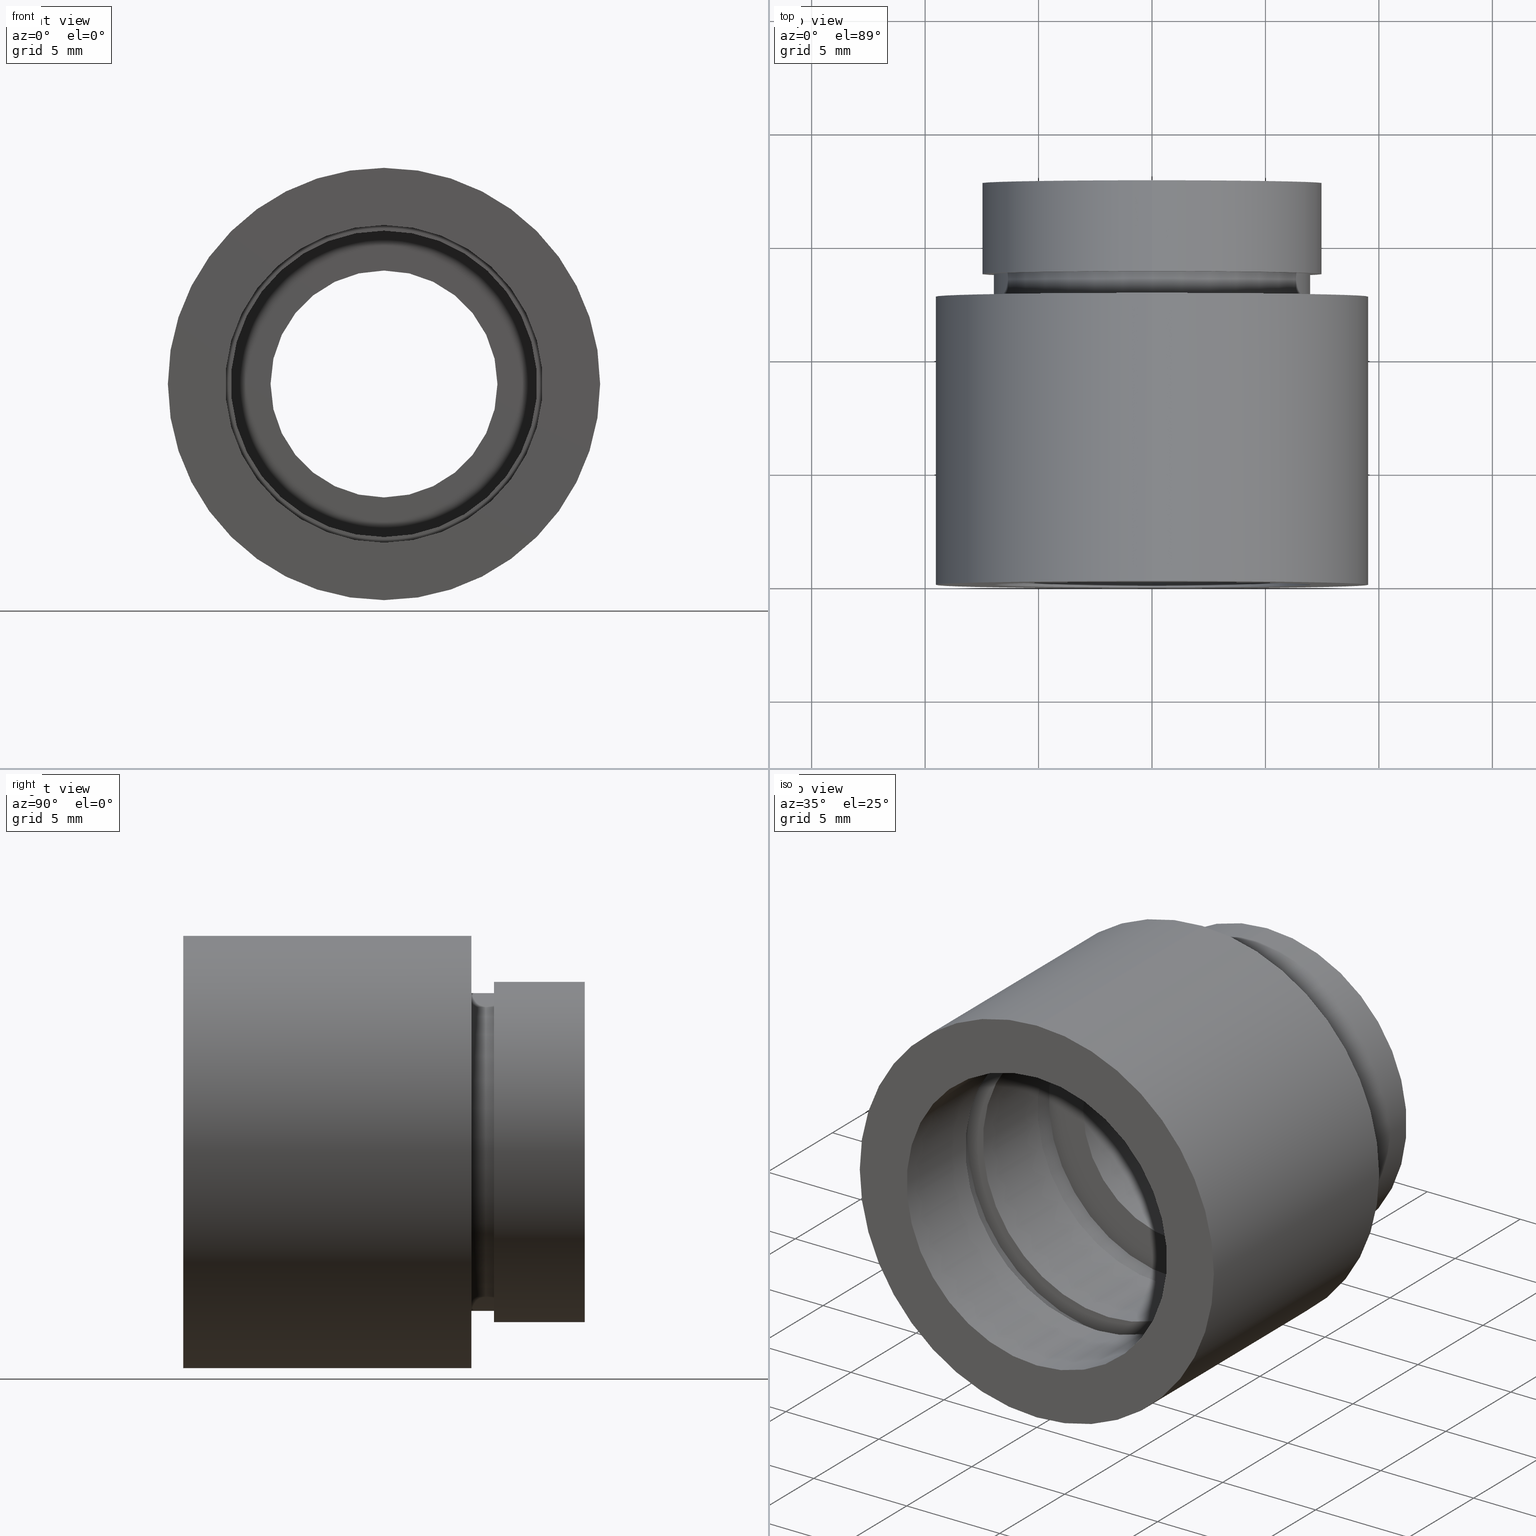
[diagram: canonical four-view strip — front | top / right | iso, engineering-drawing reading convention]
A machine part, canonical four-view strip (front | top / right | iso — engineering-drawing reading convention). The complete STEP part file that produces these views, byte-faithful:
ISO-10303-21;
HEADER;
FILE_DESCRIPTION (( 'STEP AP203' ),
    '1' );
FILE_NAME ('503081.STEP',
    '2021-05-27T08:49:48',
    ( '' ),
    ( '' ),
    'SwSTEP 2.0',
    'SolidWorks 2020',
    '' );
FILE_SCHEMA (( 'CONFIG_CONTROL_DESIGN' ));
ENDSEC;

DATA;
#1 = CARTESIAN_POINT ( 'NONE',  ( 0.000000000000000000, 161.3761669434274495, 0.000000000000000000 ) ) ;
#2 = PERSON_AND_ORGANIZATION_ROLE ( 'design_owner' ) ;
#3 = EDGE_LOOP ( 'NONE', ( #549, #90, #642, #698 ) ) ;
#4 = ADVANCED_FACE ( 'NONE', ( #473, #231 ), #415, .F. ) ;
#5 = DIRECTION ( 'NONE',  ( 0.000000000000000000, -1.000000000000000000, 0.000000000000000000 ) ) ;
#6 = PERSON_AND_ORGANIZATION ( #295, #449 ) ;
#7 = VERTEX_POINT ( 'NONE', #77 ) ;
#8 = SECURITY_CLASSIFICATION ( '', '', #224 ) ;
#9 = CARTESIAN_POINT ( 'NONE',  ( 8.388830574159390583E-16, 161.3761669434274495, -6.850000000000017408 ) ) ;
#10 = PERSON_AND_ORGANIZATION ( #295, #449 ) ;
#11 = FACE_OUTER_BOUND ( 'NONE', #300, .T. ) ;
#12 = ADVANCED_FACE ( 'NONE', ( #291 ), #234, .F. ) ;
#13 = DIRECTION ( 'NONE',  ( 0.000000000000000000, 0.000000000000000000, 1.000000000000000000 ) ) ;
#14 = CC_DESIGN_PERSON_AND_ORGANIZATION_ASSIGNMENT ( #63, #673, ( #8 ) ) ;
#15 = CIRCLE ( 'NONE', #250, 9.525000000000019895 ) ;
#16 = CARTESIAN_POINT ( 'NONE',  ( 0.000000000000000000, 161.3761669434274495, 0.000000000000000000 ) ) ;
#17 = CIRCLE ( 'NONE', #107, 6.850000000000017408 ) ;
#18 = CARTESIAN_POINT ( 'NONE',  ( 8.572527594031496856E-16, 4.499999999999976019, -7.000000000000020428 ) ) ;
#19 = CARTESIAN_POINT ( 'NONE',  ( 0.000000000000000000, 161.3761669434274495, 6.750000000000018652 ) ) ;
#20 = EDGE_LOOP ( 'NONE', ( #310, #72 ) ) ;
#21 = CIRCLE ( 'NONE', #111, 9.525000000000019895 ) ;
#22 = CARTESIAN_POINT ( 'NONE',  ( 0.000000000000000000, -2.775557561562891351E-14, 0.000000000000000000 ) ) ;
#23 = ORIENTED_EDGE ( 'NONE', *, *, #517, .F. ) ;
#24 = EDGE_CURVE ( 'NONE', #264, #7, #226, .T. ) ;
#25 = DIRECTION ( 'NONE',  ( -0.000000000000000000, 1.000000000000000000, -0.000000000000000000 ) ) ;
#26 = AXIS2_PLACEMENT_3D ( 'NONE', #45, #258, #487 ) ;
#27 = EDGE_LOOP ( 'NONE', ( #221, #409 ) ) ;
#28 = PLANE ( 'NONE',  #50 ) ;
#29 = VERTEX_POINT ( 'NONE', #18 ) ;
#30 = VECTOR ( 'NONE', #697, 1000.000000000000000 ) ;
#31 = AXIS2_PLACEMENT_3D ( 'NONE', #162, #571, #109 ) ;
#32 = ORIENTED_EDGE ( 'NONE', *, *, #320, .T. ) ;
#33 = CARTESIAN_POINT ( 'NONE',  ( 0.000000000000000000, 5.499999999999976907, 0.000000000000000000 ) ) ;
#34 = EDGE_CURVE ( 'NONE', #481, #37, #407, .T. ) ;
#35 = DIRECTION ( 'NONE',  ( 0.000000000000000000, 0.000000000000000000, 1.000000000000000000 ) ) ;
#36 = DIRECTION ( 'NONE',  ( -0.000000000000000000, 1.000000000000000000, -0.000000000000000000 ) ) ;
#37 = VERTEX_POINT ( 'NONE', #178 ) ;
#38 = EDGE_LOOP ( 'NONE', ( #317, #242 ) ) ;
#39 = DIRECTION ( 'NONE',  ( 0.000000000000000000, 0.000000000000000000, 1.000000000000000000 ) ) ;
#40 = CARTESIAN_POINT ( 'NONE',  ( 0.000000000000000000, 161.3761669434274495, 0.000000000000000000 ) ) ;
#41 = CARTESIAN_POINT ( 'NONE',  ( 8.572527594031494883E-16, 13.69999999999999041, -7.000000000000018652 ) ) ;
#42 = EDGE_LOOP ( 'NONE', ( #149, #436 ) ) ;
#43 = DIRECTION ( 'NONE',  ( 0.000000000000000000, 0.000000000000000000, 1.000000000000000000 ) ) ;
#44 = VECTOR ( 'NONE', #660, 1000.000000000000000 ) ;
#45 = CARTESIAN_POINT ( 'NONE',  ( 0.000000000000000000, 161.3761669434274495, 0.000000000000000000 ) ) ;
#46 = CARTESIAN_POINT ( 'NONE',  ( 0.000000000000000000, -2.775557561562891351E-14, 0.000000000000000000 ) ) ;
#47 = AXIS2_PLACEMENT_3D ( 'NONE', #440, #723, #97 ) ;
#48 = VERTEX_POINT ( 'NONE', #349 ) ;
#49 = DIRECTION ( 'NONE',  ( 0.000000000000000000, 0.000000000000000000, 1.000000000000000000 ) ) ;
#50 = AXIS2_PLACEMENT_3D ( 'NONE', #364, #244, #591 ) ;
#51 = ORIENTED_EDGE ( 'NONE', *, *, #80, .F. ) ;
#52 = CIRCLE ( 'NONE', #683, 6.850000000000017408 ) ;
#53 = EDGE_CURVE ( 'NONE', #60, #29, #83, .T. ) ;
#54 = DIRECTION ( 'NONE',  ( -0.000000000000000000, 1.000000000000000000, -0.000000000000000000 ) ) ;
#55 = DATE_TIME_ROLE ( 'creation_date' ) ;
#56 = APPLICATION_CONTEXT ( 'configuration controlled 3d designs of mechanical parts and assemblies' ) ;
#57 = CARTESIAN_POINT ( 'NONE',  ( 0.000000000000000000, 161.3761669434274495, 0.000000000000000000 ) ) ;
#58 = DIRECTION ( 'NONE',  ( -0.000000000000000000, 1.000000000000000000, -0.000000000000000000 ) ) ;
#59 = DATE_AND_TIME ( #443, #186 ) ;
#60 = VERTEX_POINT ( 'NONE', #344 ) ;
#61 = DIRECTION ( 'NONE',  ( -0.000000000000000000, 1.000000000000000000, -0.000000000000000000 ) ) ;
#62 = CARTESIAN_POINT ( 'NONE',  ( 0.000000000000000000, -2.775557561562891351E-14, 7.000000000000020428 ) ) ;
#63 = PERSON_AND_ORGANIZATION ( #295, #449 ) ;
#64 = CARTESIAN_POINT ( 'NONE',  ( 8.388830574159390583E-16, 9.699999999999958433, -6.850000000000017408 ) ) ;
#65 = CC_DESIGN_DATE_AND_TIME_ASSIGNMENT ( #59, #55, ( #181 ) ) ;
#66 = AXIS2_PLACEMENT_3D ( 'NONE', #593, #25, #35 ) ;
#67 = CARTESIAN_POINT ( 'NONE',  ( 0.000000000000000000, 12.69999999999998863, 0.000000000000000000 ) ) ;
#68 = CARTESIAN_POINT ( 'NONE',  ( 0.000000000000000000, 17.69999999999996732, 7.500000000000015099 ) ) ;
#69 = COORDINATED_UNIVERSAL_TIME_OFFSET ( 8, 0, .AHEAD. ) ;
#70 = CIRCLE ( 'NONE', #629, 7.000000000000020428 ) ;
#71 = FACE_OUTER_BOUND ( 'NONE', #187, .T. ) ;
#72 = ORIENTED_EDGE ( 'NONE', *, *, #211, .T. ) ;
#73 = LINE ( 'NONE', #574, #306 ) ;
#74 = AXIS2_PLACEMENT_3D ( 'NONE', #171, #169, #333 ) ;
#75 = EDGE_CURVE ( 'NONE', #209, #144, #368, .T. ) ;
#76 = ORIENTED_EDGE ( 'NONE', *, *, #175, .T. ) ;
#77 = CARTESIAN_POINT ( 'NONE',  ( 0.000000000000000000, 12.69999999999998863, 7.000000000000018652 ) ) ;
#78 = CARTESIAN_POINT ( 'NONE',  ( 0.000000000000000000, 161.3761669434274495, 7.000000000000020428 ) ) ;
#79 = ORIENTED_EDGE ( 'NONE', *, *, #175, .F. ) ;
#80 = EDGE_CURVE ( 'NONE', #401, #469, #679, .T. ) ;
#81 = CARTESIAN_POINT ( 'NONE',  ( 0.000000000000000000, 161.3761669434274495, 0.000000000000000000 ) ) ;
#82 = ORIENTED_EDGE ( 'NONE', *, *, #517, .T. ) ;
#83 = CIRCLE ( 'NONE', #490, 7.000000000000020428 ) ;
#84 = DIRECTION ( 'NONE',  ( -0.000000000000000000, 1.000000000000000000, -0.000000000000000000 ) ) ;
#85 = AXIS2_PLACEMENT_3D ( 'NONE', #694, #408, #577 ) ;
#86 = EDGE_LOOP ( 'NONE', ( #708, #136, #290, #422 ) ) ;
#87 = EDGE_CURVE ( 'NONE', #182, #29, #362, .T. ) ;
#88 = DIRECTION ( 'NONE',  ( -0.000000000000000000, 1.000000000000000000, -0.000000000000000000 ) ) ;
#89 = ORIENTED_EDGE ( 'NONE', *, *, #24, .T. ) ;
#90 = ORIENTED_EDGE ( 'NONE', *, *, #125, .F. ) ;
#91 = CARTESIAN_POINT ( 'NONE',  ( 0.000000000000000000, 9.699999999999958433, 0.000000000000000000 ) ) ;
#92 = AXIS2_PLACEMENT_3D ( 'NONE', #195, #640, #357 ) ;
#93 = CARTESIAN_POINT ( 'NONE',  ( 8.388830574159390583E-16, 10.69999999999996021, -6.850000000000017408 ) ) ;
#94 = APPLICATION_CONTEXT ( 'configuration controlled 3d designs of mechanical parts and assemblies' ) ;
#95 = EDGE_LOOP ( 'NONE', ( #135, #544 ) ) ;
#96 = CARTESIAN_POINT ( 'NONE',  ( 9.307315673519907153E-16, 161.3761669434274495, -7.600000000000019185 ) ) ;
#97 = DIRECTION ( 'NONE',  ( 0.000000000000000000, 0.000000000000000000, 1.000000000000000000 ) ) ;
#98 = DIRECTION ( 'NONE',  ( -0.000000000000000000, 1.000000000000000000, -0.000000000000000000 ) ) ;
#99 = ORIENTED_EDGE ( 'NONE', *, *, #240, .T. ) ;
#100 = AXIS2_PLACEMENT_3D ( 'NONE', #67, #288, #315 ) ;
#101 = EDGE_CURVE ( 'NONE', #528, #209, #104, .T. ) ;
#102 = DIRECTION ( 'NONE',  ( 0.000000000000000000, 0.000000000000000000, 1.000000000000000000 ) ) ;
#103 = ORIENTED_EDGE ( 'NONE', *, *, #468, .T. ) ;
#104 = CIRCLE ( 'NONE', #644, 6.850000000000017408 ) ;
#105 = CARTESIAN_POINT ( 'NONE',  ( 9.307315673519907153E-16, 5.499999999999976907, -7.600000000000019185 ) ) ;
#106 = DIRECTION ( 'NONE',  ( 0.000000000000000000, 0.000000000000000000, 1.000000000000000000 ) ) ;
#107 = AXIS2_PLACEMENT_3D ( 'NONE', #123, #126, #245 ) ;
#108 = ORIENTED_EDGE ( 'NONE', *, *, #636, .F. ) ;
#109 = DIRECTION ( 'NONE',  ( 0.000000000000000000, 0.000000000000000000, 1.000000000000000000 ) ) ;
#110 = SHAPE_DEFINITION_REPRESENTATION ( #523, #424 ) ;
#111 = AXIS2_PLACEMENT_3D ( 'NONE', #321, #619, #442 ) ;
#112 = CYLINDRICAL_SURFACE ( 'NONE', #74, 5.000000000000016875 ) ;
#113 = CARTESIAN_POINT ( 'NONE',  ( 0.000000000000000000, 9.699999999999958433, 0.000000000000000000 ) ) ;
#114 = EDGE_CURVE ( 'NONE', #438, #692, #515, .T. ) ;
#115 = AXIS2_PLACEMENT_3D ( 'NONE', #645, #485, #374 ) ;
#116 = CARTESIAN_POINT ( 'NONE',  ( 8.572527594031494883E-16, 161.3761669434274495, -7.000000000000018652 ) ) ;
#117 = FACE_OUTER_BOUND ( 'NONE', #3, .T. ) ;
#118 = PERSON_AND_ORGANIZATION ( #295, #449 ) ;
#119 = CARTESIAN_POINT ( 'NONE',  ( 8.266365894244657013E-16, 161.3761669434274495, -6.750000000000018652 ) ) ;
#120 = PERSON_AND_ORGANIZATION_ROLE ( 'creator' ) ;
#121 = CIRCLE ( 'NONE', #189, 7.000000000000020428 ) ;
#122 = DIRECTION ( 'NONE',  ( 0.000000000000000000, 0.000000000000000000, 1.000000000000000000 ) ) ;
#123 = CARTESIAN_POINT ( 'NONE',  ( 0.000000000000000000, 10.69999999999996021, 0.000000000000000000 ) ) ;
#124 = CYLINDRICAL_SURFACE ( 'NONE', #606, 6.850000000000017408 ) ;
#125 = EDGE_CURVE ( 'NONE', #209, #528, #620, .T. ) ;
#126 = DIRECTION ( 'NONE',  ( -0.000000000000000000, 1.000000000000000000, -0.000000000000000000 ) ) ;
#127 = ORIENTED_EDGE ( 'NONE', *, *, #628, .F. ) ;
#128 = ORIENTED_EDGE ( 'NONE', *, *, #657, .F. ) ;
#129 = CYLINDRICAL_SURFACE ( 'NONE', #435, 6.750000000000018652 ) ;
#130 = PRODUCT_DEFINITION_FORMATION_WITH_SPECIFIED_SOURCE ( '�κ�', '', #347, .NOT_KNOWN. ) ;
#131 = ORIENTED_EDGE ( 'NONE', *, *, #628, .T. ) ;
#132 = CARTESIAN_POINT ( 'NONE',  ( 0.000000000000000000, 161.3761669434274495, 5.000000000000016875 ) ) ;
#133 = FACE_BOUND ( 'NONE', #20, .T. ) ;
#134 = CARTESIAN_POINT ( 'NONE',  ( 8.266365894244657013E-16, 5.499999999999976907, -6.750000000000018652 ) ) ;
#135 = ORIENTED_EDGE ( 'NONE', *, *, #600, .T. ) ;
#136 = ORIENTED_EDGE ( 'NONE', *, *, #327, .F. ) ;
#137 = CARTESIAN_POINT ( 'NONE',  ( 0.000000000000000000, 161.3761669434274495, 0.000000000000000000 ) ) ;
#138 = AXIS2_PLACEMENT_3D ( 'NONE', #137, #647, #693 ) ;
#139 = CC_DESIGN_PERSON_AND_ORGANIZATION_ASSIGNMENT ( #386, #450, ( #130 ) ) ;
#140 = MANIFOLD_SOLID_BREP ( '��ת1', #353 ) ;
#141 = CARTESIAN_POINT ( 'NONE',  ( 0.000000000000000000, 12.69999999999998863, 9.525000000000019895 ) ) ;
#142 = AXIS2_PLACEMENT_3D ( 'NONE', #661, #36, #200 ) ;
#143 = AXIS2_PLACEMENT_3D ( 'NONE', #57, #54, #13 ) ;
#144 = VERTEX_POINT ( 'NONE', #603 ) ;
#145 = CARTESIAN_POINT ( 'NONE',  ( 0.000000000000000000, 5.499999999999976907, 0.000000000000000000 ) ) ;
#146 = DIRECTION ( 'NONE',  ( 0.000000000000000000, 0.000000000000000000, 1.000000000000000000 ) ) ;
#147 = DIRECTION ( 'NONE',  ( -0.000000000000000000, 1.000000000000000000, -0.000000000000000000 ) ) ;
#148 = ORIENTED_EDGE ( 'NONE', *, *, #704, .T. ) ;
#149 = ORIENTED_EDGE ( 'NONE', *, *, #327, .T. ) ;
#150 = AXIS2_PLACEMENT_3D ( 'NONE', #665, #706, #158 ) ;
#151 = DIRECTION ( 'NONE',  ( -0.000000000000000000, 1.000000000000000000, -0.000000000000000000 ) ) ;
#152 = ORIENTED_EDGE ( 'NONE', *, *, #80, .T. ) ;
#153 = CARTESIAN_POINT ( 'NONE',  ( 8.572527594031496856E-16, -2.775557561562891351E-14, -7.000000000000020428 ) ) ;
#154 = AXIS2_PLACEMENT_3D ( 'NONE', #491, #720, #102 ) ;
#155 = FACE_BOUND ( 'NONE', #27, .T. ) ;
#156 = ORIENTED_EDGE ( 'NONE', *, *, #726, .T. ) ;
#157 = DIRECTION ( 'NONE',  ( 0.000000000000000000, 0.000000000000000000, 1.000000000000000000 ) ) ;
#158 = DIRECTION ( 'NONE',  ( 0.000000000000000000, 0.000000000000000000, 1.000000000000000000 ) ) ;
#159 = EDGE_LOOP ( 'NONE', ( #360, #261 ) ) ;
#160 = ORIENTED_EDGE ( 'NONE', *, *, #510, .F. ) ;
#161 = AXIS2_PLACEMENT_3D ( 'NONE', #687, #235, #174 ) ;
#162 = CARTESIAN_POINT ( 'NONE',  ( 0.000000000000000000, 17.69999999999996732, 0.000000000000000000 ) ) ;
#163 = EDGE_CURVE ( 'NONE', #48, #432, #296, .T. ) ;
#164 = FACE_OUTER_BOUND ( 'NONE', #540, .T. ) ;
#165 = CARTESIAN_POINT ( 'NONE',  ( 0.000000000000000000, 0.000000000000000000, 0.000000000000000000 ) ) ;
#166 = EDGE_LOOP ( 'NONE', ( #127, #191, #76, #656 ) ) ;
#167 = CARTESIAN_POINT ( 'NONE',  ( 6.750000000000018652, 9.699999999999972644, 0.000000000000000000 ) ) ;
#168 = EDGE_CURVE ( 'NONE', #177, #293, #15, .T. ) ;
#169 = DIRECTION ( 'NONE',  ( -0.000000000000000000, 1.000000000000000000, -0.000000000000000000 ) ) ;
#170 = DIRECTION ( 'NONE',  ( 0.000000000000000000, 0.000000000000000000, 1.000000000000000000 ) ) ;
#171 = CARTESIAN_POINT ( 'NONE',  ( 0.000000000000000000, 161.3761669434274495, 0.000000000000000000 ) ) ;
#172 = APPROVAL_ROLE ( '' ) ;
#173 = CIRCLE ( 'NONE', #115, 7.600000000000019185 ) ;
#174 = DIRECTION ( 'NONE',  ( 0.000000000000000000, 0.000000000000000000, 1.000000000000000000 ) ) ;
#175 = EDGE_CURVE ( 'NONE', #586, #48, #252, .T. ) ;
#176 = CARTESIAN_POINT ( 'NONE',  ( 6.750000000000018652, 5.499999999999984013, 0.000000000000000000 ) ) ;
#177 = VERTEX_POINT ( 'NONE', #198 ) ;
#178 = CARTESIAN_POINT ( 'NONE',  ( 0.000000000000000000, 17.69999999999996732, 5.000000000000016875 ) ) ;
#179 = CIRCLE ( 'NONE', #512, 5.000000000000016875 ) ;
#180 = DIRECTION ( 'NONE',  ( -0.000000000000000000, 1.000000000000000000, -0.000000000000000000 ) ) ;
#181 = PRODUCT_DEFINITION ( 'δ֪', '', #130, #662 ) ;
#182 = VERTEX_POINT ( 'NONE', #153 ) ;
#183 = FACE_BOUND ( 'NONE', #42, .T. ) ;
#184 = ORIENTED_EDGE ( 'NONE', *, *, #53, .T. ) ;
#185 = DIRECTION ( 'NONE',  ( -0.000000000000000000, 1.000000000000000000, -0.000000000000000000 ) ) ;
#186 = LOCAL_TIME ( 16, 49, 48.00000000000000000, #680 ) ;
#187 = EDGE_LOOP ( 'NONE', ( #536, #554, #194, #255 ) ) ;
#188 = APPROVAL ( #391, 'δָ��' ) ;
#189 = AXIS2_PLACEMENT_3D ( 'NONE', #22, #279, #462 ) ;
#190 = CYLINDRICAL_SURFACE ( 'NONE', #142, 7.600000000000019185 ) ;
#191 = ORIENTED_EDGE ( 'NONE', *, *, #600, .F. ) ;
#192 = AXIS2_PLACEMENT_3D ( 'NONE', #643, #527, #294 ) ;
#193 = AXIS2_PLACEMENT_3D ( 'NONE', #280, #613, #223 ) ;
#194 = ORIENTED_EDGE ( 'NONE', *, *, #309, .T. ) ;
#195 = CARTESIAN_POINT ( 'NONE',  ( 7.000000000000018652, 13.69999999999998330, 0.000000000000000000 ) ) ;
#196 = VERTEX_POINT ( 'NONE', #428 ) ;
#197 = ORIENTED_EDGE ( 'NONE', *, *, #530, .F. ) ;
#198 = CARTESIAN_POINT ( 'NONE',  ( 0.000000000000000000, -2.775557561562891351E-14, 9.525000000000019895 ) ) ;
#199 = DIRECTION ( 'NONE',  ( 0.000000000000000000, 0.000000000000000000, 1.000000000000000000 ) ) ;
#200 = DIRECTION ( 'NONE',  ( 0.000000000000000000, 0.000000000000000000, 1.000000000000000000 ) ) ;
#201 = ADVANCED_FACE ( 'NONE', ( #207, #659 ), #373, .F. ) ;
#202 = ORIENTED_EDGE ( 'NONE', *, *, #478, .T. ) ;
#203 = DIRECTION ( 'NONE',  ( -0.000000000000000000, 1.000000000000000000, -0.000000000000000000 ) ) ;
#204 = VECTOR ( 'NONE', #437, 1000.000000000000000 ) ;
#205 = DIRECTION ( 'NONE',  ( -0.000000000000000000, 1.000000000000000000, -0.000000000000000000 ) ) ;
#206 = ORIENTED_EDGE ( 'NONE', *, *, #283, .F. ) ;
#207 = FACE_OUTER_BOUND ( 'NONE', #348, .T. ) ;
#208 = CIRCLE ( 'NONE', #682, 5.000000000000016875 ) ;
#209 = VERTEX_POINT ( 'NONE', #256 ) ;
#210 = PLANE ( 'NONE',  #538 ) ;
#211 = EDGE_CURVE ( 'NONE', #612, #557, #271, .T. ) ;
#212 = VECTOR ( 'NONE', #467, 1000.000000000000000 ) ;
#213 = FACE_OUTER_BOUND ( 'NONE', #246, .T. ) ;
#214 = EDGE_LOOP ( 'NONE', ( #669, #488 ) ) ;
#215 = VECTOR ( 'NONE', #482, 1000.000000000000000 ) ;
#216 = LINE ( 'NONE', #617, #461 ) ;
#217 = DATE_AND_TIME ( #277, #689 ) ;
#218 = EDGE_LOOP ( 'NONE', ( #465, #103, #521, #241 ) ) ;
#219 = ADVANCED_FACE ( 'NONE', ( #265, #433 ), #375, .F. ) ;
#220 = DIRECTION ( 'NONE',  ( 0.000000000000000000, 0.000000000000000000, 1.000000000000000000 ) ) ;
#221 = ORIENTED_EDGE ( 'NONE', *, *, #667, .F. ) ;
#222 = APPROVAL_PERSON_ORGANIZATION ( #118, #522, #514 ) ;
#223 = DIRECTION ( 'NONE',  ( 0.000000000000000000, 0.000000000000000000, 1.000000000000000000 ) ) ;
#224 = SECURITY_CLASSIFICATION_LEVEL ( 'unclassified' ) ;
#225 = CARTESIAN_POINT ( 'NONE',  ( 0.000000000000000000, 161.3761669434274495, 0.000000000000000000 ) ) ;
#226 = CIRCLE ( 'NONE', #589, 7.000000000000018652 ) ;
#227 = CARTESIAN_POINT ( 'NONE',  ( 0.000000000000000000, 161.3761669434274495, 0.000000000000000000 ) ) ;
#228 = APPROVAL_STATUS ( 'not_yet_approved' ) ;
#229 = VECTOR ( 'NONE', #392, 1000.000000000000000 ) ;
#230 = DIRECTION ( 'NONE',  ( -0.000000000000000000, 1.000000000000000000, -0.000000000000000000 ) ) ;
#231 = FACE_OUTER_BOUND ( 'NONE', #579, .T. ) ;
#232 = LINE ( 'NONE', #627, #212 ) ;
#233 = ORIENTED_EDGE ( 'NONE', *, *, #510, .T. ) ;
#234 = CYLINDRICAL_SURFACE ( 'NONE', #138, 7.000000000000020428 ) ;
#235 = DIRECTION ( 'NONE',  ( -0.000000000000000000, 1.000000000000000000, -0.000000000000000000 ) ) ;
#236 = EDGE_LOOP ( 'NONE', ( #202, #361 ) ) ;
#237 = CIRCLE ( 'NONE', #459, 7.500000000000015099 ) ;
#238 =( NAMED_UNIT ( * ) PLANE_ANGLE_UNIT ( ) SI_UNIT ( $, .RADIAN. ) );
#239 = CARTESIAN_POINT ( 'NONE',  ( 0.000000000000000000, 13.69999999999999041, 7.500000000000015987 ) ) ;
#240 = EDGE_CURVE ( 'NONE', #293, #177, #21, .T. ) ;
#241 = ORIENTED_EDGE ( 'NONE', *, *, #350, .F. ) ;
#242 = ORIENTED_EDGE ( 'NONE', *, *, #240, .F. ) ;
#243 = PLANE ( 'NONE',  #92 ) ;
#244 = DIRECTION ( 'NONE',  ( 0.000000000000000000, -1.000000000000000000, 0.000000000000000000 ) ) ;
#245 = DIRECTION ( 'NONE',  ( 0.000000000000000000, 0.000000000000000000, 1.000000000000000000 ) ) ;
#246 = EDGE_LOOP ( 'NONE', ( #160, #23, #371, #274 ) ) ;
#247 = DIRECTION ( 'NONE',  ( 0.000000000000000000, 0.000000000000000000, 1.000000000000000000 ) ) ;
#248 = EDGE_LOOP ( 'NONE', ( #668, #89, #148, #476 ) ) ;
#249 = ORIENTED_EDGE ( 'NONE', *, *, #667, .T. ) ;
#250 = AXIS2_PLACEMENT_3D ( 'NONE', #46, #546, #43 ) ;
#251 = DIRECTION ( 'NONE',  ( -0.000000000000000000, 1.000000000000000000, 0.000000000000000000 ) ) ;
#252 = LINE ( 'NONE', #556, #215 ) ;
#253 = CC_DESIGN_PERSON_AND_ORGANIZATION_ASSIGNMENT ( #397, #120, ( #181 ) ) ;
#254 = DIRECTION ( 'NONE',  ( 0.000000000000000000, 0.000000000000000000, 1.000000000000000000 ) ) ;
#255 = ORIENTED_EDGE ( 'NONE', *, *, #75, .F. ) ;
#256 = CARTESIAN_POINT ( 'NONE',  ( 0.000000000000000000, 9.699999999999958433, 6.850000000000017408 ) ) ;
#257 = AXIS2_PLACEMENT_3D ( 'NONE', #470, #539, #199 ) ;
#258 = DIRECTION ( 'NONE',  ( -0.000000000000000000, 1.000000000000000000, -0.000000000000000000 ) ) ;
#259 = ORIENTED_EDGE ( 'NONE', *, *, #283, .T. ) ;
#260 = DIRECTION ( 'NONE',  ( 0.000000000000000000, 0.000000000000000000, 1.000000000000000000 ) ) ;
#261 = ORIENTED_EDGE ( 'NONE', *, *, #726, .F. ) ;
#262 = EDGE_CURVE ( 'NONE', #37, #714, #524, .T. ) ;
#263 = FACE_BOUND ( 'NONE', #607, .T. ) ;
#264 = VERTEX_POINT ( 'NONE', #502 ) ;
#265 = FACE_OUTER_BOUND ( 'NONE', #38, .T. ) ;
#266 = CIRCLE ( 'NONE', #385, 6.750000000000018652 ) ;
#267 = DIRECTION ( 'NONE',  ( -0.000000000000000000, 1.000000000000000000, -0.000000000000000000 ) ) ;
#268 = APPLICATION_PROTOCOL_DEFINITION ( 'international standard', 'config_control_design', 1994, #94 ) ;
#269 = FACE_OUTER_BOUND ( 'NONE', #166, .T. ) ;
#270 = APPROVAL_DATE_TIME ( #685, #522 ) ;
#271 = CIRCLE ( 'NONE', #372, 7.000000000000018652 ) ;
#272 = DIRECTION ( 'NONE',  ( -0.000000000000000000, 1.000000000000000000, -0.000000000000000000 ) ) ;
#273 = APPLICATION_PROTOCOL_DEFINITION ( 'international standard', 'config_control_design', 1994, #56 ) ;
#274 = ORIENTED_EDGE ( 'NONE', *, *, #262, .T. ) ;
#275 = CARTESIAN_POINT ( 'NONE',  ( 0.000000000000000000, 161.3761669434274495, 0.000000000000000000 ) ) ;
#276 = DIRECTION ( 'NONE',  ( -0.000000000000000000, 1.000000000000000000, -0.000000000000000000 ) ) ;
#277 = CALENDAR_DATE ( 2021, 27, 5 ) ;
#278 = CC_DESIGN_APPROVAL ( #686, ( #8 ) ) ;
#279 = DIRECTION ( 'NONE',  ( -0.000000000000000000, 1.000000000000000000, -0.000000000000000000 ) ) ;
#280 = CARTESIAN_POINT ( 'NONE',  ( 0.000000000000000000, 161.3761669434274495, 0.000000000000000000 ) ) ;
#281 = APPROVAL_DATE_TIME ( #572, #686 ) ;
#282 = DIRECTION ( 'NONE',  ( 0.000000000000000000, 0.000000000000000000, 1.000000000000000000 ) ) ;
#283 = EDGE_CURVE ( 'NONE', #177, #633, #565, .T. ) ;
#284 = ADVANCED_FACE ( 'NONE', ( #676, #164 ), #384, .F. ) ;
#285 = DIRECTION ( 'NONE',  ( 0.000000000000000000, 0.000000000000000000, 1.000000000000000000 ) ) ;
#286 = AXIS2_PLACEMENT_3D ( 'NONE', #145, #325, #504 ) ;
#287 = FACE_OUTER_BOUND ( 'NONE', #86, .T. ) ;
#288 = DIRECTION ( 'NONE',  ( -0.000000000000000000, 1.000000000000000000, -0.000000000000000000 ) ) ;
#289 = ADVANCED_FACE ( 'NONE', ( #609 ), #448, .T. ) ;
#290 = ORIENTED_EDGE ( 'NONE', *, *, #445, .T. ) ;
#291 = FACE_OUTER_BOUND ( 'NONE', #318, .T. ) ;
#292 = DIRECTION ( 'NONE',  ( 0.000000000000000000, 0.000000000000000000, 1.000000000000000000 ) ) ;
#293 = VERTEX_POINT ( 'NONE', #446 ) ;
#294 = DIRECTION ( 'NONE',  ( 0.000000000000000000, -0.000000000000000000, -1.000000000000000000 ) ) ;
#295 = PERSON ( 'δָ��', 'δָ��', 'δָ��', ('δָ��'), ('δָ��'), ('δָ��') ) ;
#296 = CIRCLE ( 'NONE', #717, 7.600000000000019185 ) ;
#297 = ORIENTED_EDGE ( 'NONE', *, *, #309, .F. ) ;
#298 = AXIS2_PLACEMENT_3D ( 'NONE', #308, #302, #254 ) ;
#299 = FACE_OUTER_BOUND ( 'NONE', #380, .T. ) ;
#300 = EDGE_LOOP ( 'NONE', ( #108, #99, #259, #495 ) ) ;
#301 = FACE_OUTER_BOUND ( 'NONE', #218, .T. ) ;
#302 = DIRECTION ( 'NONE',  ( -0.000000000000000000, 1.000000000000000000, -0.000000000000000000 ) ) ;
#303 = CIRCLE ( 'NONE', #508, 9.525000000000019895 ) ;
#304 = VERTEX_POINT ( 'NONE', #678 ) ;
#305 = DIRECTION ( 'NONE',  ( -0.000000000000000000, 1.000000000000000000, -0.000000000000000000 ) ) ;
#306 = VECTOR ( 'NONE', #185, 1000.000000000000000 ) ;
#307 = FACE_OUTER_BOUND ( 'NONE', #592, .T. ) ;
#308 = CARTESIAN_POINT ( 'NONE',  ( 0.000000000000000000, 4.499999999999976019, 0.000000000000000000 ) ) ;
#309 = EDGE_CURVE ( 'NONE', #596, #144, #52, .T. ) ;
#310 = ORIENTED_EDGE ( 'NONE', *, *, #444, .T. ) ;
#311 = CARTESIAN_POINT ( 'NONE',  ( 0.000000000000000000, 161.3761669434274495, 6.850000000000017408 ) ) ;
#312 = EDGE_CURVE ( 'NONE', #432, #48, #580, .T. ) ;
#313 = DIRECTION ( 'NONE',  ( 0.000000000000000000, 0.000000000000000000, 1.000000000000000000 ) ) ;
#314 = CARTESIAN_POINT ( 'NONE',  ( 0.000000000000000000, 9.699999999999958433, 0.000000000000000000 ) ) ;
#315 = DIRECTION ( 'NONE',  ( 0.000000000000000000, 0.000000000000000000, 1.000000000000000000 ) ) ;
#316 = FACE_OUTER_BOUND ( 'NONE', #718, .T. ) ;
#317 = ORIENTED_EDGE ( 'NONE', *, *, #168, .F. ) ;
#318 = EDGE_LOOP ( 'NONE', ( #632, #367, #563, #184 ) ) ;
#319 = AXIS2_PLACEMENT_3D ( 'NONE', #165, #170, #621 ) ;
#320 = EDGE_CURVE ( 'NONE', #354, #196, #610, .T. ) ;
#321 = CARTESIAN_POINT ( 'NONE',  ( 0.000000000000000000, -2.775557561562891351E-14, 0.000000000000000000 ) ) ;
#322 = VECTOR ( 'NONE', #463, 1000.000000000000000 ) ;
#323 = DIRECTION ( 'NONE',  ( -0.000000000000000000, 1.000000000000000000, -0.000000000000000000 ) ) ;
#324 = DIRECTION ( 'NONE',  ( -0.000000000000000000, 1.000000000000000000, -0.000000000000000000 ) ) ;
#325 = DIRECTION ( 'NONE',  ( -0.000000000000000000, 1.000000000000000000, -0.000000000000000000 ) ) ;
#326 = DIRECTION ( 'NONE',  ( -0.000000000000000000, 1.000000000000000000, -0.000000000000000000 ) ) ;
#327 = EDGE_CURVE ( 'NONE', #692, #438, #266, .T. ) ;
#328 = CC_DESIGN_PERSON_AND_ORGANIZATION_ASSIGNMENT ( #499, #394, ( #130 ) ) ;
#329 = ORIENTED_EDGE ( 'NONE', *, *, #573, .T. ) ;
#330 = DIRECTION ( 'NONE',  ( -0.000000000000000000, 1.000000000000000000, -0.000000000000000000 ) ) ;
#331 = VECTOR ( 'NONE', #594, 1000.000000000000000 ) ;
#332 = CALENDAR_DATE ( 2021, 27, 5 ) ;
#333 = DIRECTION ( 'NONE',  ( 0.000000000000000000, 0.000000000000000000, 1.000000000000000000 ) ) ;
#334 = APPROVAL_ROLE ( '' ) ;
#335 = APPROVAL_PERSON_ORGANIZATION ( #6, #686, #172 ) ;
#336 = DIRECTION ( 'NONE',  ( 0.000000000000000000, 0.000000000000000000, 1.000000000000000000 ) ) ;
#337 = ADVANCED_FACE ( 'NONE', ( #564 ), #390, .T. ) ;
#338 = VECTOR ( 'NONE', #516, 1000.000000000000000 ) ;
#339 = CARTESIAN_POINT ( 'NONE',  ( 1.166476076187856388E-15, 12.69999999999998863, -9.525000000000019895 ) ) ;
#340 = EDGE_LOOP ( 'NONE', ( #82, #551 ) ) ;
#341 = FACE_OUTER_BOUND ( 'NONE', #472, .T. ) ;
#342 = ADVANCED_FACE ( 'NONE', ( #269 ), #453, .F. ) ;
#343 = ORIENTED_EDGE ( 'NONE', *, *, #588, .F. ) ;
#344 = CARTESIAN_POINT ( 'NONE',  ( 0.000000000000000000, 4.499999999999976019, 7.000000000000020428 ) ) ;
#345 = CARTESIAN_POINT ( 'NONE',  ( 0.000000000000000000, 10.69999999999996021, 5.000000000000016875 ) ) ;
#346 = CIRCLE ( 'NONE', #66, 5.000000000000016875 ) ;
#347 = PRODUCT ( '503081', '503081', '', ( #618 ) ) ;
#348 = EDGE_LOOP ( 'NONE', ( #598, #297 ) ) ;
#349 = CARTESIAN_POINT ( 'NONE',  ( 0.000000000000000000, 5.499999999999976907, 7.600000000000019185 ) ) ;
#350 = EDGE_CURVE ( 'NONE', #469, #354, #216, .T. ) ;
#351 =( NAMED_UNIT ( * ) SI_UNIT ( $, .STERADIAN. ) SOLID_ANGLE_UNIT ( ) );
#352 = DIRECTION ( 'NONE',  ( 0.000000000000000000, 0.000000000000000000, 1.000000000000000000 ) ) ;
#353 = CLOSED_SHELL ( 'NONE', ( #498, #684, #616, #578, #638, #425, #719, #483, #201, #365, #4, #289, #690, #337, #566, #532, #219, #12, #430, #342, #452, #562, #284, #387 ) ) ;
#354 = VERTEX_POINT ( 'NONE', #68 ) ;
#355 = CARTESIAN_POINT ( 'NONE',  ( 0.000000000000000000, 12.69999999999998863, 0.000000000000000000 ) ) ;
#356 = CIRCLE ( 'NONE', #529, 7.500000000000015987 ) ;
#357 = DIRECTION ( 'NONE',  ( 0.000000000000000000, 0.000000000000000000, 1.000000000000000000 ) ) ;
#358 = CARTESIAN_POINT ( 'NONE',  ( 1.166476076187856388E-15, 161.3761669434274495, -9.525000000000019895 ) ) ;
#359 = CIRCLE ( 'NONE', #558, 6.750000000000018652 ) ;
#360 = ORIENTED_EDGE ( 'NONE', *, *, #262, .F. ) ;
#361 = ORIENTED_EDGE ( 'NONE', *, *, #530, .T. ) ;
#362 = LINE ( 'NONE', #542, #417 ) ;
#363 = FACE_OUTER_BOUND ( 'NONE', #703, .T. ) ;
#364 = CARTESIAN_POINT ( 'NONE',  ( 7.000000000000018652, 12.69999999999998153, 0.000000000000000000 ) ) ;
#365 = ADVANCED_FACE ( 'NONE', ( #213 ), #112, .F. ) ;
#366 = CC_DESIGN_SECURITY_CLASSIFICATION ( #8, ( #130 ) ) ;
#367 = ORIENTED_EDGE ( 'NONE', *, *, #478, .F. ) ;
#368 = LINE ( 'NONE', #311, #204 ) ;
#369 =( LENGTH_UNIT ( ) NAMED_UNIT ( * ) SI_UNIT ( .MILLI., .METRE. ) );
#370 = LINE ( 'NONE', #96, #664 ) ;
#371 = ORIENTED_EDGE ( 'NONE', *, *, #34, .T. ) ;
#372 = AXIS2_PLACEMENT_3D ( 'NONE', #715, #203, #260 ) ;
#373 = PLANE ( 'NONE',  #403 ) ;
#374 = DIRECTION ( 'NONE',  ( 0.000000000000000000, 0.000000000000000000, 1.000000000000000000 ) ) ;
#375 = PLANE ( 'NONE',  #154 ) ;
#376 = EDGE_CURVE ( 'NONE', #583, #582, #359, .T. ) ;
#377 = DIRECTION ( 'NONE',  ( 0.000000000000000000, 0.000000000000000000, 1.000000000000000000 ) ) ;
#378 = VERTEX_POINT ( 'NONE', #62 ) ;
#379 = AXIS2_PLACEMENT_3D ( 'NONE', #225, #681, #282 ) ;
#380 = EDGE_LOOP ( 'NONE', ( #343, #131, #688, #79 ) ) ;
#381 = DIRECTION ( 'NONE',  ( 0.000000000000000000, -1.000000000000000000, 0.000000000000000000 ) ) ;
#382 = DIRECTION ( 'NONE',  ( 0.000000000000000000, -0.000000000000000000, -1.000000000000000000 ) ) ;
#383 = EDGE_CURVE ( 'NONE', #528, #596, #507, .T. ) ;
#384 = PLANE ( 'NONE',  #649 ) ;
#385 = AXIS2_PLACEMENT_3D ( 'NONE', #388, #323, #560 ) ;
#386 = PERSON_AND_ORGANIZATION ( #295, #449 ) ;
#387 = ADVANCED_FACE ( 'NONE', ( #117 ), #513, .F. ) ;
#388 = CARTESIAN_POINT ( 'NONE',  ( 0.000000000000000000, 5.499999999999976907, 0.000000000000000000 ) ) ;
#389 = LINE ( 'NONE', #116, #671 ) ;
#390 = CYLINDRICAL_SURFACE ( 'NONE', #143, 7.000000000000018652 ) ;
#391 = APPROVAL_STATUS ( 'not_yet_approved' ) ;
#392 = DIRECTION ( 'NONE',  ( -0.000000000000000000, 1.000000000000000000, -0.000000000000000000 ) ) ;
#393 = AXIS2_PLACEMENT_3D ( 'NONE', #713, #416, #655 ) ;
#394 = PERSON_AND_ORGANIZATION_ROLE ( 'creator' ) ;
#395 = EDGE_CURVE ( 'NONE', #144, #596, #17, .T. ) ;
#396 = PLANE ( 'NONE',  #400 ) ;
#397 = PERSON_AND_ORGANIZATION ( #295, #449 ) ;
#398 = LOCAL_TIME ( 16, 49, 48.00000000000000000, #614 ) ;
#399 = DIRECTION ( 'NONE',  ( -0.000000000000000000, 1.000000000000000000, 0.000000000000000000 ) ) ;
#400 = AXIS2_PLACEMENT_3D ( 'NONE', #176, #399, #336 ) ;
#401 = VERTEX_POINT ( 'NONE', #611 ) ;
#402 = CARTESIAN_POINT ( 'NONE',  ( 0.000000000000000000, 4.499999999999976019, 0.000000000000000000 ) ) ;
#403 = AXIS2_PLACEMENT_3D ( 'NONE', #537, #251, #49 ) ;
#404 = EDGE_CURVE ( 'NONE', #264, #612, #389, .T. ) ;
#405 = DIRECTION ( 'NONE',  ( 0.000000000000000000, 0.000000000000000000, 1.000000000000000000 ) ) ;
#406 = ORIENTED_EDGE ( 'NONE', *, *, #573, .F. ) ;
#407 = LINE ( 'NONE', #132, #322 ) ;
#408 = DIRECTION ( 'NONE',  ( -0.000000000000000000, 1.000000000000000000, -0.000000000000000000 ) ) ;
#409 = ORIENTED_EDGE ( 'NONE', *, *, #24, .F. ) ;
#410 = CARTESIAN_POINT ( 'NONE',  ( 6.123233995736786004E-16, 17.69999999999996732, -5.000000000000016875 ) ) ;
#411 = CARTESIAN_POINT ( 'NONE',  ( 0.000000000000000000, 10.69999999999996021, 0.000000000000000000 ) ) ;
#412 = CIRCLE ( 'NONE', #100, 7.000000000000018652 ) ;
#413 = EDGE_LOOP ( 'NONE', ( #653, #152, #489, #496 ) ) ;
#414 = EDGE_LOOP ( 'NONE', ( #707, #722 ) ) ;
#415 = PLANE ( 'NONE',  #192 ) ;
#416 = DIRECTION ( 'NONE',  ( -0.000000000000000000, 1.000000000000000000, -0.000000000000000000 ) ) ;
#417 = VECTOR ( 'NONE', #712, 1000.000000000000000 ) ;
#418 = ORIENTED_EDGE ( 'NONE', *, *, #506, .T. ) ;
#419 = ORIENTED_EDGE ( 'NONE', *, *, #615, .F. ) ;
#420 = CARTESIAN_POINT ( 'NONE',  ( 0.000000000000000000, 9.699999999999958433, 6.750000000000018652 ) ) ;
#421 = AXIS2_PLACEMENT_3D ( 'NONE', #227, #458, #672 ) ;
#422 = ORIENTED_EDGE ( 'NONE', *, *, #657, .T. ) ;
#423 = ORIENTED_EDGE ( 'NONE', *, *, #168, .T. ) ;
#424 = ADVANCED_BREP_SHAPE_REPRESENTATION ( '503081', ( #140, #319 ), #675 ) ;
#425 = ADVANCED_FACE ( 'NONE', ( #439 ), #567, .T. ) ;
#426 = FACE_OUTER_BOUND ( 'NONE', #605, .T. ) ;
#427 = ORIENTED_EDGE ( 'NONE', *, *, #445, .F. ) ;
#428 = CARTESIAN_POINT ( 'NONE',  ( 9.184850993605167666E-16, 17.69999999999996732, -7.500000000000015099 ) ) ;
#429 = LINE ( 'NONE', #358, #331 ) ;
#430 = ADVANCED_FACE ( 'NONE', ( #263, #494 ), #210, .F. ) ;
#431 = VECTOR ( 'NONE', #276, 1000.000000000000000 ) ;
#432 = VERTEX_POINT ( 'NONE', #105 ) ;
#433 = FACE_BOUND ( 'NONE', #236, .T. ) ;
#434 = DIRECTION ( 'NONE',  ( 0.000000000000000000, 0.000000000000000000, 1.000000000000000000 ) ) ;
#435 = AXIS2_PLACEMENT_3D ( 'NONE', #519, #88, #313 ) ;
#436 = ORIENTED_EDGE ( 'NONE', *, *, #114, .T. ) ;
#437 = DIRECTION ( 'NONE',  ( -0.000000000000000000, 1.000000000000000000, -0.000000000000000000 ) ) ;
#438 = VERTEX_POINT ( 'NONE', #134 ) ;
#439 = FACE_OUTER_BOUND ( 'NONE', #520, .T. ) ;
#440 = CARTESIAN_POINT ( 'NONE',  ( 0.000000000000000000, 13.69999999999999041, 0.000000000000000000 ) ) ;
#441 = ORIENTED_EDGE ( 'NONE', *, *, #704, .F. ) ;
#442 = DIRECTION ( 'NONE',  ( 0.000000000000000000, 0.000000000000000000, 1.000000000000000000 ) ) ;
#443 = CALENDAR_DATE ( 2021, 27, 5 ) ;
#444 = EDGE_CURVE ( 'NONE', #557, #612, #575, .T. ) ;
#445 = EDGE_CURVE ( 'NONE', #692, #582, #585, .T. ) ;
#446 = CARTESIAN_POINT ( 'NONE',  ( 1.166476076187856388E-15, -2.775557561562891351E-14, -9.525000000000019895 ) ) ;
#447 = ORIENTED_EDGE ( 'NONE', *, *, #376, .F. ) ;
#448 = CYLINDRICAL_SURFACE ( 'NONE', #193, 7.500000000000015099 ) ;
#449 = ORGANIZATION ( 'δָ��', 'δָ��', '' ) ;
#450 = PERSON_AND_ORGANIZATION_ROLE ( 'design_supplier' ) ;
#451 = VERTEX_POINT ( 'NONE', #464 ) ;
#452 = ADVANCED_FACE ( 'NONE', ( #631, #183 ), #396, .F. ) ;
#453 = CYLINDRICAL_SURFACE ( 'NONE', #480, 7.600000000000019185 ) ;
#454 = CC_DESIGN_PERSON_AND_ORGANIZATION_ASSIGNMENT ( #503, #2, ( #347 ) ) ;
#455 = APPROVAL_STATUS ( 'not_yet_approved' ) ;
#456 = AXIS2_PLACEMENT_3D ( 'NONE', #314, #305, #157 ) ;
#457 = LINE ( 'NONE', #78, #30 ) ;
#458 = DIRECTION ( 'NONE',  ( -0.000000000000000000, 1.000000000000000000, -0.000000000000000000 ) ) ;
#459 = AXIS2_PLACEMENT_3D ( 'NONE', #651, #151, #543 ) ;
#460 = DATE_AND_TIME ( #677, #550 ) ;
#461 = VECTOR ( 'NONE', #267, 1000.000000000000000 ) ;
#462 = DIRECTION ( 'NONE',  ( 0.000000000000000000, 0.000000000000000000, 1.000000000000000000 ) ) ;
#463 = DIRECTION ( 'NONE',  ( -0.000000000000000000, 1.000000000000000000, -0.000000000000000000 ) ) ;
#464 = CARTESIAN_POINT ( 'NONE',  ( 6.123233995736786004E-16, 10.69999999999996021, -5.000000000000016875 ) ) ;
#465 = ORIENTED_EDGE ( 'NONE', *, *, #615, .T. ) ;
#466 = ORIENTED_EDGE ( 'NONE', *, *, #34, .F. ) ;
#467 = DIRECTION ( 'NONE',  ( -0.000000000000000000, 1.000000000000000000, -0.000000000000000000 ) ) ;
#468 = EDGE_CURVE ( 'NONE', #401, #196, #232, .T. ) ;
#469 = VERTEX_POINT ( 'NONE', #239 ) ;
#470 = CARTESIAN_POINT ( 'NONE',  ( 0.000000000000000000, 161.3761669434274495, 0.000000000000000000 ) ) ;
#471 = DIRECTION ( 'NONE',  ( -0.000000000000000000, 1.000000000000000000, -0.000000000000000000 ) ) ;
#472 = EDGE_LOOP ( 'NONE', ( #646, #233, #156, #466 ) ) ;
#473 = FACE_BOUND ( 'NONE', #159, .T. ) ;
#474 = CYLINDRICAL_SURFACE ( 'NONE', #584, 6.750000000000018652 ) ;
#475 = CARTESIAN_POINT ( 'NONE',  ( 8.266365894244657013E-16, 9.699999999999958433, -6.750000000000018652 ) ) ;
#476 = ORIENTED_EDGE ( 'NONE', *, *, #211, .F. ) ;
#477 = VECTOR ( 'NONE', #525, 1000.000000000000000 ) ;
#478 = EDGE_CURVE ( 'NONE', #378, #182, #70, .T. ) ;
#479 = CYLINDRICAL_SURFACE ( 'NONE', #257, 7.500000000000015099 ) ;
#480 = AXIS2_PLACEMENT_3D ( 'NONE', #1, #326, #623 ) ;
#481 = VERTEX_POINT ( 'NONE', #345 ) ;
#482 = DIRECTION ( 'NONE',  ( -0.000000000000000000, 1.000000000000000000, -0.000000000000000000 ) ) ;
#483 = ADVANCED_FACE ( 'NONE', ( #341 ), #581, .F. ) ;
#484 = LINE ( 'NONE', #534, #44 ) ;
#485 = DIRECTION ( 'NONE',  ( -0.000000000000000000, 1.000000000000000000, -0.000000000000000000 ) ) ;
#486 = CARTESIAN_POINT ( 'NONE',  ( 0.000000000000000000, 5.499999999999976907, 0.000000000000000000 ) ) ;
#487 = DIRECTION ( 'NONE',  ( 0.000000000000000000, 0.000000000000000000, 1.000000000000000000 ) ) ;
#488 = ORIENTED_EDGE ( 'NONE', *, *, #312, .F. ) ;
#489 = ORIENTED_EDGE ( 'NONE', *, *, #350, .T. ) ;
#490 = AXIS2_PLACEMENT_3D ( 'NONE', #402, #630, #634 ) ;
#491 = CARTESIAN_POINT ( 'NONE',  ( 9.525000000000019895, -1.518912785978163891E-14, 0.000000000000000000 ) ) ;
#492 = ORIENTED_EDGE ( 'NONE', *, *, #587, .T. ) ;
#493 = AXIS2_PLACEMENT_3D ( 'NONE', #531, #147, #710 ) ;
#494 = FACE_OUTER_BOUND ( 'NONE', #95, .T. ) ;
#495 = ORIENTED_EDGE ( 'NONE', *, *, #699, .F. ) ;
#496 = ORIENTED_EDGE ( 'NONE', *, *, #587, .F. ) ;
#497 = CARTESIAN_POINT ( 'NONE',  ( 0.000000000000000000, 10.69999999999996021, 0.000000000000000000 ) ) ;
#498 = ADVANCED_FACE ( 'NONE', ( #71 ), #124, .F. ) ;
#499 = PERSON_AND_ORGANIZATION ( #295, #449 ) ;
#500 = EDGE_CURVE ( 'NONE', #378, #60, #457, .T. ) ;
#501 = AXIS2_PLACEMENT_3D ( 'NONE', #16, #180, #292 ) ;
#502 = CARTESIAN_POINT ( 'NONE',  ( 8.572527594031494883E-16, 12.69999999999998863, -7.000000000000018652 ) ) ;
#503 = PERSON_AND_ORGANIZATION ( #295, #449 ) ;
#504 = DIRECTION ( 'NONE',  ( 0.000000000000000000, 0.000000000000000000, 1.000000000000000000 ) ) ;
#505 = COORDINATED_UNIVERSAL_TIME_OFFSET ( 8, 0, .AHEAD. ) ;
#506 = EDGE_CURVE ( 'NONE', #438, #583, #625, .T. ) ;
#507 = LINE ( 'NONE', #9, #229 ) ;
#508 = AXIS2_PLACEMENT_3D ( 'NONE', #597, #601, #654 ) ;
#509 = COORDINATED_UNIVERSAL_TIME_OFFSET ( 8, 0, .AHEAD. ) ;
#510 = EDGE_CURVE ( 'NONE', #451, #714, #73, .T. ) ;
#511 = CARTESIAN_POINT ( 'NONE',  ( 0.000000000000000000, -2.775557561562891351E-14, 0.000000000000000000 ) ) ;
#512 = AXIS2_PLACEMENT_3D ( 'NONE', #411, #230, #352 ) ;
#513 = CYLINDRICAL_SURFACE ( 'NONE', #421, 6.850000000000017408 ) ;
#514 = APPROVAL_ROLE ( '' ) ;
#515 = CIRCLE ( 'NONE', #555, 6.750000000000018652 ) ;
#516 = DIRECTION ( 'NONE',  ( -0.000000000000000000, 1.000000000000000000, -0.000000000000000000 ) ) ;
#517 = EDGE_CURVE ( 'NONE', #481, #451, #179, .T. ) ;
#518 = AXIS2_PLACEMENT_3D ( 'NONE', #725, #58, #106 ) ;
#519 = CARTESIAN_POINT ( 'NONE',  ( 0.000000000000000000, 161.3761669434274495, 0.000000000000000000 ) ) ;
#520 = EDGE_LOOP ( 'NONE', ( #249, #652, #729, #441 ) ) ;
#521 = ORIENTED_EDGE ( 'NONE', *, *, #320, .F. ) ;
#522 = APPROVAL ( #228, 'δָ��' ) ;
#523 = PRODUCT_DEFINITION_SHAPE ( 'NONE', 'NONE',  #181 ) ;
#524 = CIRCLE ( 'NONE', #31, 5.000000000000016875 ) ;
#525 = DIRECTION ( 'NONE',  ( -0.000000000000000000, 1.000000000000000000, -0.000000000000000000 ) ) ;
#526 = ORIENTED_EDGE ( 'NONE', *, *, #636, .T. ) ;
#527 = DIRECTION ( 'NONE',  ( 0.000000000000000000, -1.000000000000000000, 0.000000000000000000 ) ) ;
#528 = VERTEX_POINT ( 'NONE', #64 ) ;
#529 = AXIS2_PLACEMENT_3D ( 'NONE', #701, #84, #247 ) ;
#530 = EDGE_CURVE ( 'NONE', #182, #378, #121, .T. ) ;
#531 = CARTESIAN_POINT ( 'NONE',  ( 0.000000000000000000, 4.499999999999976019, 0.000000000000000000 ) ) ;
#532 = ADVANCED_FACE ( 'NONE', ( #11 ), #691, .T. ) ;
#533 = ORIENTED_EDGE ( 'NONE', *, *, #53, .F. ) ;
#534 = CARTESIAN_POINT ( 'NONE',  ( 0.000000000000000000, 161.3761669434274495, 7.000000000000018652 ) ) ;
#535 = CYLINDRICAL_SURFACE ( 'NONE', #393, 7.000000000000020428 ) ;
#536 = ORIENTED_EDGE ( 'NONE', *, *, #101, .F. ) ;
#537 = CARTESIAN_POINT ( 'NONE',  ( 5.000000000000016875, 10.69999999999997264, 0.000000000000000000 ) ) ;
#538 = AXIS2_PLACEMENT_3D ( 'NONE', #670, #381, #561 ) ;
#539 = DIRECTION ( 'NONE',  ( -0.000000000000000000, 1.000000000000000000, -0.000000000000000000 ) ) ;
#540 = EDGE_LOOP ( 'NONE', ( #541, #711 ) ) ;
#541 = ORIENTED_EDGE ( 'NONE', *, *, #125, .T. ) ;
#542 = CARTESIAN_POINT ( 'NONE',  ( 8.572527594031496856E-16, 161.3761669434274495, -7.000000000000020428 ) ) ;
#543 = DIRECTION ( 'NONE',  ( 0.000000000000000000, 0.000000000000000000, 1.000000000000000000 ) ) ;
#544 = ORIENTED_EDGE ( 'NONE', *, *, #588, .T. ) ;
#545 = VERTEX_POINT ( 'NONE', #339 ) ;
#546 = DIRECTION ( 'NONE',  ( -0.000000000000000000, 1.000000000000000000, -0.000000000000000000 ) ) ;
#547 = EDGE_CURVE ( 'NONE', #633, #545, #702, .T. ) ;
#548 = CYLINDRICAL_SURFACE ( 'NONE', #26, 9.525000000000019895 ) ;
#549 = ORIENTED_EDGE ( 'NONE', *, *, #383, .F. ) ;
#550 = LOCAL_TIME ( 16, 49, 48.00000000000000000, #69 ) ;
#551 = ORIENTED_EDGE ( 'NONE', *, *, #650, .T. ) ;
#552 = UNCERTAINTY_MEASURE_WITH_UNIT (LENGTH_MEASURE( 1.000000000000000082E-05 ), #369, 'distance_accuracy_value', 'NONE');
#553 = DIRECTION ( 'NONE',  ( -0.000000000000000000, 1.000000000000000000, -0.000000000000000000 ) ) ;
#554 = ORIENTED_EDGE ( 'NONE', *, *, #383, .T. ) ;
#555 = AXIS2_PLACEMENT_3D ( 'NONE', #33, #666, #377 ) ;
#556 = CARTESIAN_POINT ( 'NONE',  ( 0.000000000000000000, 161.3761669434274495, 7.600000000000019185 ) ) ;
#557 = VERTEX_POINT ( 'NONE', #635 ) ;
#558 = AXIS2_PLACEMENT_3D ( 'NONE', #113, #330, #568 ) ;
#559 = PRODUCT_RELATED_PRODUCT_CATEGORY ( 'detail', '', ( #347 ) ) ;
#560 = DIRECTION ( 'NONE',  ( 0.000000000000000000, 0.000000000000000000, 1.000000000000000000 ) ) ;
#561 = DIRECTION ( 'NONE',  ( 0.000000000000000000, -0.000000000000000000, -1.000000000000000000 ) ) ;
#562 = ADVANCED_FACE ( 'NONE', ( #287 ), #129, .F. ) ;
#563 = ORIENTED_EDGE ( 'NONE', *, *, #500, .T. ) ;
#564 = FACE_OUTER_BOUND ( 'NONE', #248, .T. ) ;
#565 = LINE ( 'NONE', #674, #431 ) ;
#566 = ADVANCED_FACE ( 'NONE', ( #155, #602 ), #28, .F. ) ;
#567 = CYLINDRICAL_SURFACE ( 'NONE', #728, 7.000000000000018652 ) ;
#568 = DIRECTION ( 'NONE',  ( 0.000000000000000000, 0.000000000000000000, 1.000000000000000000 ) ) ;
#569 = APPROVAL_DATE_TIME ( #460, #188 ) ;
#570 = DIRECTION ( 'NONE',  ( 0.000000000000000000, 0.000000000000000000, 1.000000000000000000 ) ) ;
#571 = DIRECTION ( 'NONE',  ( -0.000000000000000000, 1.000000000000000000, -0.000000000000000000 ) ) ;
#572 = DATE_AND_TIME ( #624, #398 ) ;
#573 = EDGE_CURVE ( 'NONE', #29, #60, #648, .T. ) ;
#574 = CARTESIAN_POINT ( 'NONE',  ( 6.123233995736786004E-16, 161.3761669434274495, -5.000000000000016875 ) ) ;
#575 = CIRCLE ( 'NONE', #161, 7.000000000000018652 ) ;
#576 = DIRECTION ( 'NONE',  ( -0.000000000000000000, 1.000000000000000000, -0.000000000000000000 ) ) ;
#577 = DIRECTION ( 'NONE',  ( 0.000000000000000000, 0.000000000000000000, 1.000000000000000000 ) ) ;
#578 = ADVANCED_FACE ( 'NONE', ( #426 ), #535, .F. ) ;
#579 = EDGE_LOOP ( 'NONE', ( #32, #492 ) ) ;
#580 = CIRCLE ( 'NONE', #286, 7.600000000000019185 ) ;
#581 = CYLINDRICAL_SURFACE ( 'NONE', #501, 5.000000000000016875 ) ;
#582 = VERTEX_POINT ( 'NONE', #420 ) ;
#583 = VERTEX_POINT ( 'NONE', #475 ) ;
#584 = AXIS2_PLACEMENT_3D ( 'NONE', #40, #705, #146 ) ;
#585 = LINE ( 'NONE', #19, #338 ) ;
#586 = VERTEX_POINT ( 'NONE', #599 ) ;
#587 = EDGE_CURVE ( 'NONE', #196, #354, #237, .T. ) ;
#588 = EDGE_CURVE ( 'NONE', #304, #586, #721, .T. ) ;
#589 = AXIS2_PLACEMENT_3D ( 'NONE', #355, #576, #285 ) ;
#590 = CARTESIAN_POINT ( 'NONE',  ( 0.000000000000000000, 5.499999999999976907, 6.750000000000018652 ) ) ;
#591 = DIRECTION ( 'NONE',  ( 0.000000000000000000, -0.000000000000000000, -1.000000000000000000 ) ) ;
#592 = EDGE_LOOP ( 'NONE', ( #696, #418, #658, #427 ) ) ;
#593 = CARTESIAN_POINT ( 'NONE',  ( 0.000000000000000000, 17.69999999999996732, 0.000000000000000000 ) ) ;
#594 = DIRECTION ( 'NONE',  ( -0.000000000000000000, 1.000000000000000000, -0.000000000000000000 ) ) ;
#595 = ORIENTED_EDGE ( 'NONE', *, *, #87, .T. ) ;
#596 = VERTEX_POINT ( 'NONE', #93 ) ;
#597 = CARTESIAN_POINT ( 'NONE',  ( 0.000000000000000000, 12.69999999999998863, 0.000000000000000000 ) ) ;
#598 = ORIENTED_EDGE ( 'NONE', *, *, #395, .F. ) ;
#599 = CARTESIAN_POINT ( 'NONE',  ( 0.000000000000000000, 4.499999999999976019, 7.600000000000019185 ) ) ;
#600 = EDGE_CURVE ( 'NONE', #586, #304, #173, .T. ) ;
#601 = DIRECTION ( 'NONE',  ( -0.000000000000000000, 1.000000000000000000, -0.000000000000000000 ) ) ;
#602 = FACE_OUTER_BOUND ( 'NONE', #414, .T. ) ;
#603 = CARTESIAN_POINT ( 'NONE',  ( 0.000000000000000000, 10.69999999999996021, 6.850000000000017408 ) ) ;
#604 = CC_DESIGN_APPROVAL ( #522, ( #181 ) ) ;
#605 = EDGE_LOOP ( 'NONE', ( #197, #595, #329, #637 ) ) ;
#606 = AXIS2_PLACEMENT_3D ( 'NONE', #81, #471, #405 ) ;
#607 = EDGE_LOOP ( 'NONE', ( #533, #406 ) ) ;
#608 = CC_DESIGN_DATE_AND_TIME_ASSIGNMENT ( #217, #727, ( #8 ) ) ;
#609 = FACE_OUTER_BOUND ( 'NONE', #413, .T. ) ;
#610 = CIRCLE ( 'NONE', #518, 7.500000000000015099 ) ;
#611 = CARTESIAN_POINT ( 'NONE',  ( 9.184850993605169638E-16, 13.69999999999999041, -7.500000000000016875 ) ) ;
#612 = VERTEX_POINT ( 'NONE', #41 ) ;
#613 = DIRECTION ( 'NONE',  ( -0.000000000000000000, 1.000000000000000000, -0.000000000000000000 ) ) ;
#614 = COORDINATED_UNIVERSAL_TIME_OFFSET ( 8, 0, .AHEAD. ) ;
#615 = EDGE_CURVE ( 'NONE', #469, #401, #356, .T. ) ;
#616 = ADVANCED_FACE ( 'NONE', ( #299 ), #190, .F. ) ;
#617 = CARTESIAN_POINT ( 'NONE',  ( 0.000000000000000000, 161.3761669434274495, 7.500000000000015099 ) ) ;
#618 = MECHANICAL_CONTEXT ( 'NONE', #56, 'mechanical' ) ;
#619 = DIRECTION ( 'NONE',  ( -0.000000000000000000, 1.000000000000000000, -0.000000000000000000 ) ) ;
#620 = CIRCLE ( 'NONE', #456, 6.850000000000017408 ) ;
#621 = DIRECTION ( 'NONE',  ( 1.000000000000000000, 0.000000000000000000, 0.000000000000000000 ) ) ;
#622 = CIRCLE ( 'NONE', #150, 6.750000000000018652 ) ;
#623 = DIRECTION ( 'NONE',  ( 0.000000000000000000, 0.000000000000000000, 1.000000000000000000 ) ) ;
#624 = CALENDAR_DATE ( 2021, 27, 5 ) ;
#625 = LINE ( 'NONE', #119, #477 ) ;
#626 = APPROVAL_PERSON_ORGANIZATION ( #10, #188, #334 ) ;
#627 = CARTESIAN_POINT ( 'NONE',  ( 9.184850993605167666E-16, 161.3761669434274495, -7.500000000000015099 ) ) ;
#628 = EDGE_CURVE ( 'NONE', #304, #432, #370, .T. ) ;
#629 = AXIS2_PLACEMENT_3D ( 'NONE', #511, #641, #122 ) ;
#630 = DIRECTION ( 'NONE',  ( -0.000000000000000000, 1.000000000000000000, -0.000000000000000000 ) ) ;
#631 = FACE_OUTER_BOUND ( 'NONE', #214, .T. ) ;
#632 = ORIENTED_EDGE ( 'NONE', *, *, #87, .F. ) ;
#633 = VERTEX_POINT ( 'NONE', #141 ) ;
#634 = DIRECTION ( 'NONE',  ( 0.000000000000000000, 0.000000000000000000, 1.000000000000000000 ) ) ;
#635 = CARTESIAN_POINT ( 'NONE',  ( 0.000000000000000000, 13.69999999999999041, 7.000000000000018652 ) ) ;
#636 = EDGE_CURVE ( 'NONE', #293, #545, #429, .T. ) ;
#637 = ORIENTED_EDGE ( 'NONE', *, *, #500, .F. ) ;
#638 = ADVANCED_FACE ( 'NONE', ( #316 ), #548, .T. ) ;
#639 = CC_DESIGN_APPROVAL ( #188, ( #130 ) ) ;
#640 = DIRECTION ( 'NONE',  ( -0.000000000000000000, 1.000000000000000000, 0.000000000000000000 ) ) ;
#641 = DIRECTION ( 'NONE',  ( -0.000000000000000000, 1.000000000000000000, -0.000000000000000000 ) ) ;
#642 = ORIENTED_EDGE ( 'NONE', *, *, #75, .T. ) ;
#643 = CARTESIAN_POINT ( 'NONE',  ( 5.000000000000016875, 17.69999999999997442, 0.000000000000000000 ) ) ;
#644 = AXIS2_PLACEMENT_3D ( 'NONE', #91, #553, #39 ) ;
#645 = CARTESIAN_POINT ( 'NONE',  ( 0.000000000000000000, 4.499999999999976019, 0.000000000000000000 ) ) ;
#646 = ORIENTED_EDGE ( 'NONE', *, *, #650, .F. ) ;
#647 = DIRECTION ( 'NONE',  ( -0.000000000000000000, 1.000000000000000000, -0.000000000000000000 ) ) ;
#648 = CIRCLE ( 'NONE', #493, 7.000000000000020428 ) ;
#649 = AXIS2_PLACEMENT_3D ( 'NONE', #167, #5, #382 ) ;
#650 = EDGE_CURVE ( 'NONE', #451, #481, #208, .T. ) ;
#651 = CARTESIAN_POINT ( 'NONE',  ( 0.000000000000000000, 17.69999999999996732, 0.000000000000000000 ) ) ;
#652 = ORIENTED_EDGE ( 'NONE', *, *, #404, .T. ) ;
#653 = ORIENTED_EDGE ( 'NONE', *, *, #468, .F. ) ;
#654 = DIRECTION ( 'NONE',  ( 0.000000000000000000, 0.000000000000000000, 1.000000000000000000 ) ) ;
#655 = DIRECTION ( 'NONE',  ( 0.000000000000000000, 0.000000000000000000, 1.000000000000000000 ) ) ;
#656 = ORIENTED_EDGE ( 'NONE', *, *, #163, .T. ) ;
#657 = EDGE_CURVE ( 'NONE', #582, #583, #622, .T. ) ;
#658 = ORIENTED_EDGE ( 'NONE', *, *, #376, .T. ) ;
#659 = FACE_BOUND ( 'NONE', #340, .T. ) ;
#660 = DIRECTION ( 'NONE',  ( -0.000000000000000000, 1.000000000000000000, -0.000000000000000000 ) ) ;
#661 = CARTESIAN_POINT ( 'NONE',  ( 0.000000000000000000, 161.3761669434274495, 0.000000000000000000 ) ) ;
#662 = DESIGN_CONTEXT ( 'detailed design', #94, 'design' ) ;
#663 = DIRECTION ( 'NONE',  ( -0.000000000000000000, 1.000000000000000000, -0.000000000000000000 ) ) ;
#664 = VECTOR ( 'NONE', #98, 1000.000000000000000 ) ;
#665 = CARTESIAN_POINT ( 'NONE',  ( 0.000000000000000000, 9.699999999999958433, 0.000000000000000000 ) ) ;
#666 = DIRECTION ( 'NONE',  ( -0.000000000000000000, 1.000000000000000000, -0.000000000000000000 ) ) ;
#667 = EDGE_CURVE ( 'NONE', #7, #264, #412, .T. ) ;
#668 = ORIENTED_EDGE ( 'NONE', *, *, #404, .F. ) ;
#669 = ORIENTED_EDGE ( 'NONE', *, *, #163, .F. ) ;
#670 = CARTESIAN_POINT ( 'NONE',  ( 7.000000000000020428, 4.499999999999983125, 0.000000000000000000 ) ) ;
#671 = VECTOR ( 'NONE', #324, 1000.000000000000000 ) ;
#672 = DIRECTION ( 'NONE',  ( 0.000000000000000000, 0.000000000000000000, 1.000000000000000000 ) ) ;
#673 = PERSON_AND_ORGANIZATION_ROLE ( 'classification_officer' ) ;
#674 = CARTESIAN_POINT ( 'NONE',  ( 0.000000000000000000, 161.3761669434274495, 9.525000000000019895 ) ) ;
#675 =( GEOMETRIC_REPRESENTATION_CONTEXT ( 3 ) GLOBAL_UNCERTAINTY_ASSIGNED_CONTEXT ( ( #552 ) ) GLOBAL_UNIT_ASSIGNED_CONTEXT ( ( #369, #238, #351 ) ) REPRESENTATION_CONTEXT ( 'NONE', 'WORKASPACE' ) );
#676 = FACE_BOUND ( 'NONE', #695, .T. ) ;
#677 = CALENDAR_DATE ( 2021, 27, 5 ) ;
#678 = CARTESIAN_POINT ( 'NONE',  ( 9.307315673519907153E-16, 4.499999999999976019, -7.600000000000019185 ) ) ;
#679 = CIRCLE ( 'NONE', #47, 7.500000000000015987 ) ;
#680 = COORDINATED_UNIVERSAL_TIME_OFFSET ( 8, 0, .AHEAD. ) ;
#681 = DIRECTION ( 'NONE',  ( -0.000000000000000000, 1.000000000000000000, -0.000000000000000000 ) ) ;
#682 = AXIS2_PLACEMENT_3D ( 'NONE', #716, #205, #434 ) ;
#683 = AXIS2_PLACEMENT_3D ( 'NONE', #497, #272, #220 ) ;
#684 = ADVANCED_FACE ( 'NONE', ( #307 ), #474, .F. ) ;
#685 = DATE_AND_TIME ( #332, #724 ) ;
#686 = APPROVAL ( #455, 'δָ��' ) ;
#687 = CARTESIAN_POINT ( 'NONE',  ( 0.000000000000000000, 13.69999999999999041, 0.000000000000000000 ) ) ;
#688 = ORIENTED_EDGE ( 'NONE', *, *, #312, .T. ) ;
#689 = LOCAL_TIME ( 16, 49, 48.00000000000000000, #505 ) ;
#690 = ADVANCED_FACE ( 'NONE', ( #363, #133 ), #243, .F. ) ;
#691 = CYLINDRICAL_SURFACE ( 'NONE', #379, 9.525000000000019895 ) ;
#692 = VERTEX_POINT ( 'NONE', #590 ) ;
#693 = DIRECTION ( 'NONE',  ( 0.000000000000000000, 0.000000000000000000, 1.000000000000000000 ) ) ;
#694 = CARTESIAN_POINT ( 'NONE',  ( 0.000000000000000000, 12.69999999999998863, 0.000000000000000000 ) ) ;
#695 = EDGE_LOOP ( 'NONE', ( #128, #447 ) ) ;
#696 = ORIENTED_EDGE ( 'NONE', *, *, #114, .F. ) ;
#697 = DIRECTION ( 'NONE',  ( -0.000000000000000000, 1.000000000000000000, -0.000000000000000000 ) ) ;
#698 = ORIENTED_EDGE ( 'NONE', *, *, #395, .T. ) ;
#699 = EDGE_CURVE ( 'NONE', #545, #633, #303, .T. ) ;
#700 = ORIENTED_EDGE ( 'NONE', *, *, #547, .F. ) ;
#701 = CARTESIAN_POINT ( 'NONE',  ( 0.000000000000000000, 13.69999999999999041, 0.000000000000000000 ) ) ;
#702 = CIRCLE ( 'NONE', #85, 9.525000000000019895 ) ;
#703 = EDGE_LOOP ( 'NONE', ( #419, #51 ) ) ;
#704 = EDGE_CURVE ( 'NONE', #7, #557, #484, .T. ) ;
#705 = DIRECTION ( 'NONE',  ( -0.000000000000000000, 1.000000000000000000, -0.000000000000000000 ) ) ;
#706 = DIRECTION ( 'NONE',  ( -0.000000000000000000, 1.000000000000000000, -0.000000000000000000 ) ) ;
#707 = ORIENTED_EDGE ( 'NONE', *, *, #547, .T. ) ;
#708 = ORIENTED_EDGE ( 'NONE', *, *, #506, .F. ) ;
#709 = DIRECTION ( 'NONE',  ( 0.000000000000000000, 0.000000000000000000, 1.000000000000000000 ) ) ;
#710 = DIRECTION ( 'NONE',  ( 0.000000000000000000, 0.000000000000000000, 1.000000000000000000 ) ) ;
#711 = ORIENTED_EDGE ( 'NONE', *, *, #101, .T. ) ;
#712 = DIRECTION ( 'NONE',  ( -0.000000000000000000, 1.000000000000000000, -0.000000000000000000 ) ) ;
#713 = CARTESIAN_POINT ( 'NONE',  ( 0.000000000000000000, 161.3761669434274495, 0.000000000000000000 ) ) ;
#714 = VERTEX_POINT ( 'NONE', #410 ) ;
#715 = CARTESIAN_POINT ( 'NONE',  ( 0.000000000000000000, 13.69999999999999041, 0.000000000000000000 ) ) ;
#716 = CARTESIAN_POINT ( 'NONE',  ( 0.000000000000000000, 10.69999999999996021, 0.000000000000000000 ) ) ;
#717 = AXIS2_PLACEMENT_3D ( 'NONE', #486, #663, #709 ) ;
#718 = EDGE_LOOP ( 'NONE', ( #423, #526, #700, #206 ) ) ;
#719 = ADVANCED_FACE ( 'NONE', ( #301 ), #479, .T. ) ;
#720 = DIRECTION ( 'NONE',  ( -0.000000000000000000, 1.000000000000000000, 0.000000000000000000 ) ) ;
#721 = CIRCLE ( 'NONE', #298, 7.600000000000019185 ) ;
#722 = ORIENTED_EDGE ( 'NONE', *, *, #699, .T. ) ;
#723 = DIRECTION ( 'NONE',  ( -0.000000000000000000, 1.000000000000000000, -0.000000000000000000 ) ) ;
#724 = LOCAL_TIME ( 16, 49, 48.00000000000000000, #509 ) ;
#725 = CARTESIAN_POINT ( 'NONE',  ( 0.000000000000000000, 17.69999999999996732, 0.000000000000000000 ) ) ;
#726 = EDGE_CURVE ( 'NONE', #714, #37, #346, .T. ) ;
#727 = DATE_TIME_ROLE ( 'classification_date' ) ;
#728 = AXIS2_PLACEMENT_3D ( 'NONE', #275, #61, #570 ) ;
#729 = ORIENTED_EDGE ( 'NONE', *, *, #444, .F. ) ;
ENDSEC;
END-ISO-10303-21;
